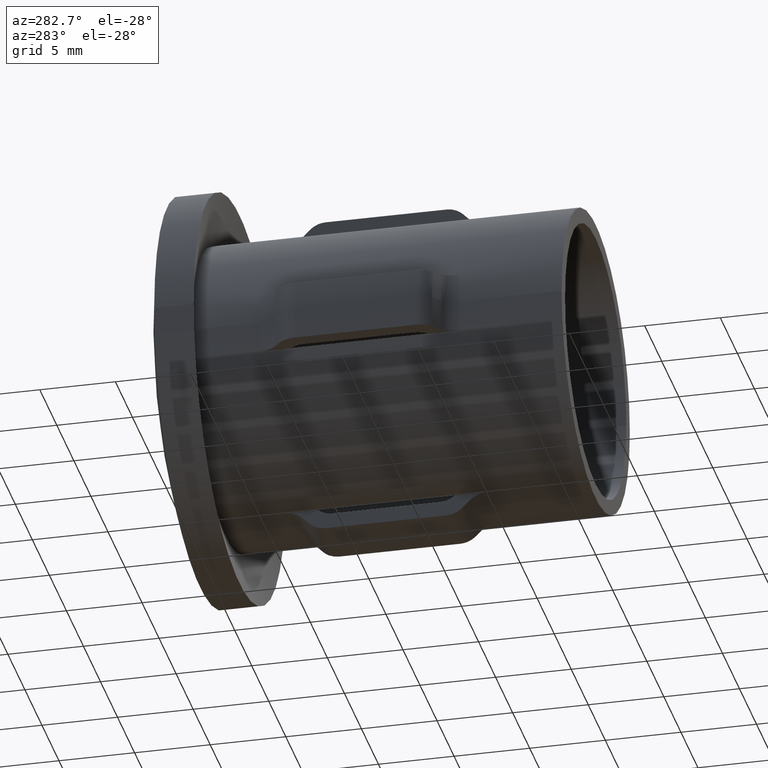
[diagram: clean part render]
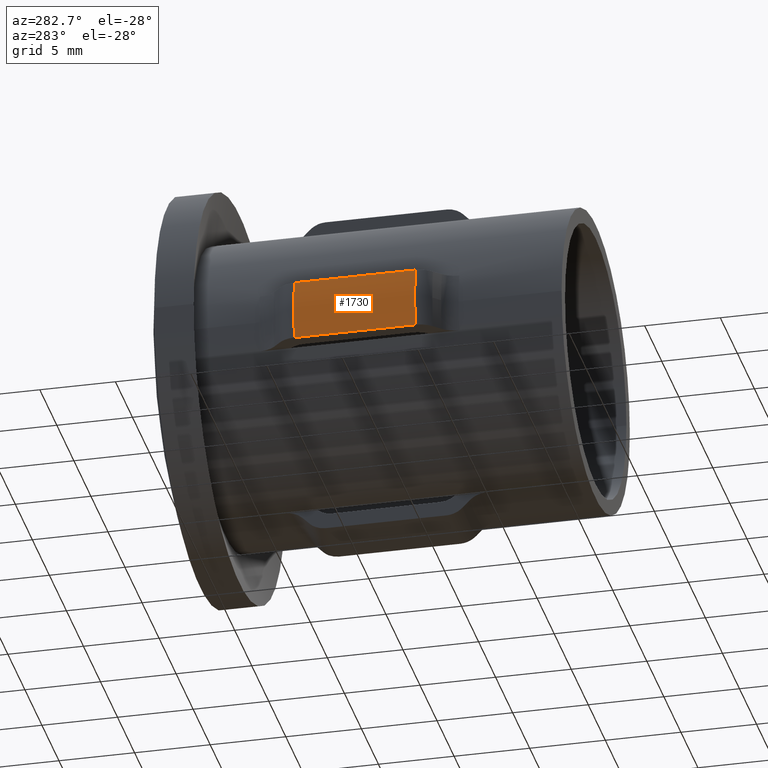
[diagram: same view with one face highlighted and labeled with its STEP entity id]
A machine part, auxiliary view. The second image highlights one B-rep face of the part: STEP entity #1730.
In plain terms, the highlighted cylindrical surface (partial cylindrical patch) has radius 11.35 mm, axis along (-0, -1, -0).
Its self-contained STEP definition (entity closure, byte-faithful):
#85 = EDGE_LOOP ( 'NONE', ( #11597, #11730, #13826, #7108 ) ) ;
#569 = CARTESIAN_POINT ( 'NONE',  ( -2.350800609151688158E-14, 17.40735931288074667, 0.000000000000000000 ) ) ;
#649 = CARTESIAN_POINT ( 'NONE',  ( -11.17239902617175140, 17.40735931288071114, -2.000000000000002665 ) ) ;
#935 = VERTEX_POINT ( 'NONE', #941 ) ;
#941 = CARTESIAN_POINT ( 'NONE',  ( -11.17239902617175140, 9.407359312880741342, 1.999999999999997113 ) ) ;
#1272 = VECTOR ( 'NONE', #12504, 1000.000000000000000 ) ;
#1699 = DIRECTION ( 'NONE',  ( 1.000000000000000000, -3.056781455465732906E-15, 0.000000000000000000 ) ) ;
#1730 = ADVANCED_FACE ( 'NONE', ( #6136 ), #8825, .T. ) ;
#1776 = CARTESIAN_POINT ( 'NONE',  ( -11.17239902617175140, 17.40735931288071114, 1.999999999999997113 ) ) ;
#1809 = AXIS2_PLACEMENT_3D ( 'NONE', #13509, #9170, #7900 ) ;
#2340 = CIRCLE ( 'NONE', #1809, 11.35000000000004761 ) ;
#2743 = DIRECTION ( 'NONE',  ( -2.904862207577519418E-15, -1.000000000000000000, -0.000000000000000000 ) ) ;
#2875 = CARTESIAN_POINT ( 'NONE',  ( -11.17239902617175140, 9.407359312880741342, -2.000000000000002665 ) ) ;
#2890 = DIRECTION ( 'NONE',  ( -2.904862207577519418E-15, -1.000000000000000000, -0.000000000000000000 ) ) ;
#3010 = AXIS2_PLACEMENT_3D ( 'NONE', #569, #2743, #1699 ) ;
#3870 = VECTOR ( 'NONE', #13694, 1000.000000000000000 ) ;
#4823 = EDGE_CURVE ( 'NONE', #12106, #8157, #10673, .T. ) ;
#4998 = AXIS2_PLACEMENT_3D ( 'NONE', #5044, #2890, #9419 ) ;
#5044 = CARTESIAN_POINT ( 'NONE',  ( 0.000000000000000000, 25.50000000000000000, 0.000000000000000000 ) ) ;
#5366 = EDGE_CURVE ( 'NONE', #935, #8157, #2340, .T. ) ;
#6136 = FACE_OUTER_BOUND ( 'NONE', #85, .T. ) ;
#6375 = CIRCLE ( 'NONE', #3010, 11.35000000000002451 ) ;
#7108 = ORIENTED_EDGE ( 'NONE', *, *, #4823, .T. ) ;
#7900 = DIRECTION ( 'NONE',  ( 1.000000000000000000, -2.903942382692440226E-15, 0.000000000000000000 ) ) ;
#8157 = VERTEX_POINT ( 'NONE', #2875 ) ;
#8443 = EDGE_CURVE ( 'NONE', #12125, #935, #12819, .T. ) ;
#8825 = CYLINDRICAL_SURFACE ( 'NONE', #4998, 11.35000000000003695 ) ;
#8910 = EDGE_CURVE ( 'NONE', #12125, #12106, #6375, .T. ) ;
#8950 = CARTESIAN_POINT ( 'NONE',  ( -11.17239902617175140, 20.00000000000000000, 1.999999999999997113 ) ) ;
#9170 = DIRECTION ( 'NONE',  ( -2.904862207577519418E-15, -1.000000000000000000, -0.000000000000000000 ) ) ;
#9419 = DIRECTION ( 'NONE',  ( 1.000000000000000000, -3.056781455465729356E-15, 0.000000000000000000 ) ) ;
#10673 = LINE ( 'NONE', #13731, #3870 ) ;
#11597 = ORIENTED_EDGE ( 'NONE', *, *, #5366, .F. ) ;
#11730 = ORIENTED_EDGE ( 'NONE', *, *, #8443, .F. ) ;
#12106 = VERTEX_POINT ( 'NONE', #649 ) ;
#12125 = VERTEX_POINT ( 'NONE', #1776 ) ;
#12504 = DIRECTION ( 'NONE',  ( -2.449293598294745364E-17, -1.000000000000000000, -0.000000000000000000 ) ) ;
#12819 = LINE ( 'NONE', #8950, #1272 ) ;
#13509 = CARTESIAN_POINT ( 'NONE',  ( -4.674690375213703061E-14, 9.407359312880750224, 0.000000000000000000 ) ) ;
#13694 = DIRECTION ( 'NONE',  ( -2.449293598294745364E-17, -1.000000000000000000, -0.000000000000000000 ) ) ;
#13731 = CARTESIAN_POINT ( 'NONE',  ( -11.17239902617175140, 20.00000000000000000, -2.000000000000002665 ) ) ;
#13826 = ORIENTED_EDGE ( 'NONE', *, *, #8910, .T. ) ;